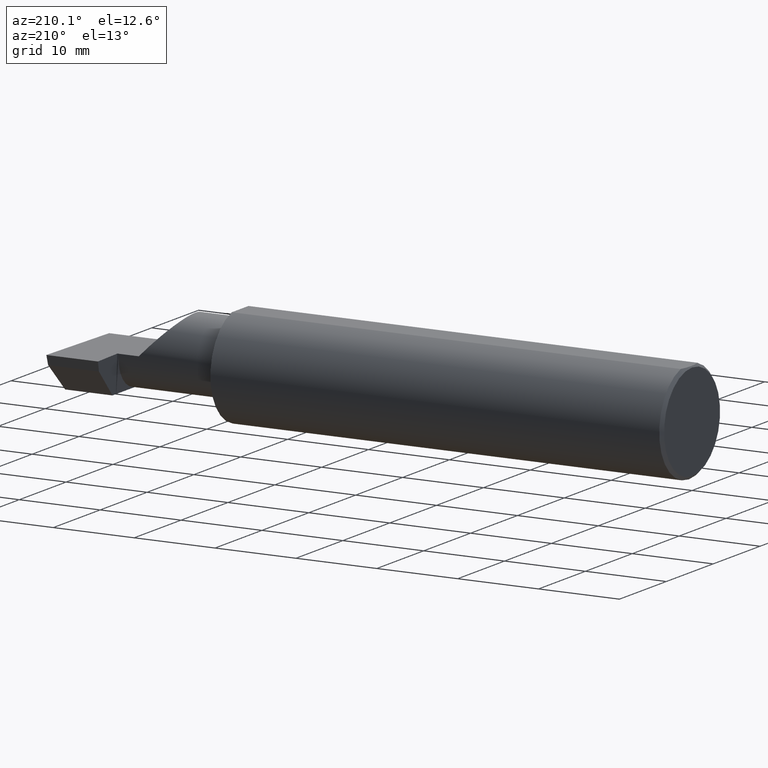
[diagram: clean part render]
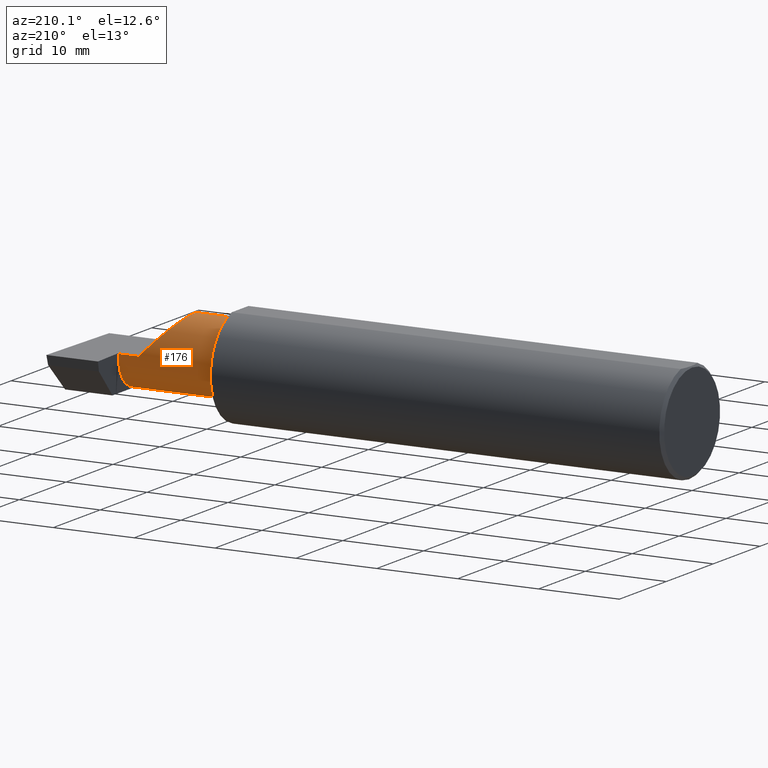
[diagram: same view with one face highlighted and labeled with its STEP entity id]
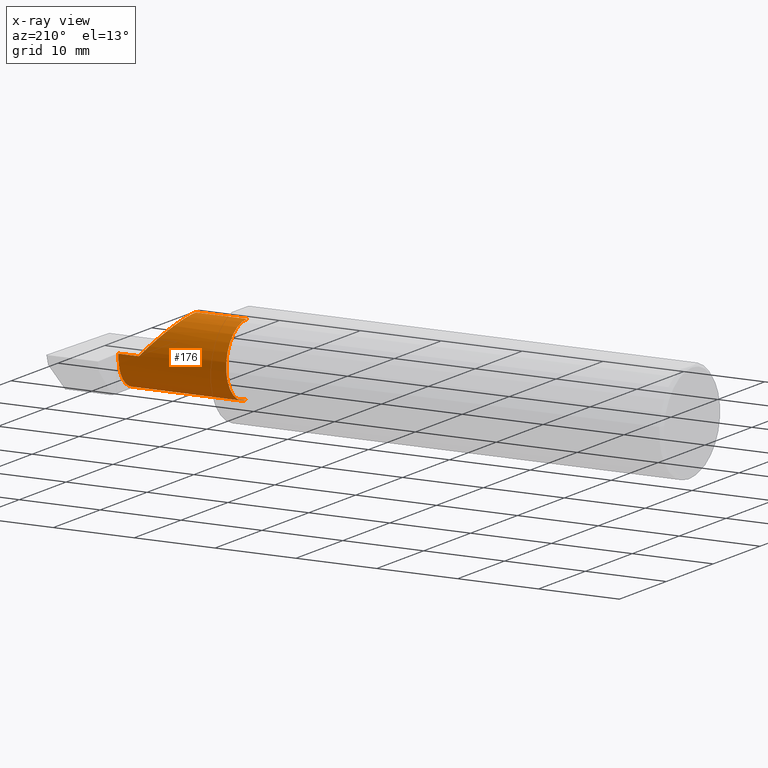
[diagram: x-ray of the same camera — body ghosted, the highlighted face saturated]
A machine part, auxiliary view. The second image highlights one B-rep face of the part: STEP entity #176.
The next image is the same camera in x-ray: the body ghosted, the highlighted face saturated — about 0% of this face is hidden behind the body in this view.
In plain terms, the highlighted cylindrical surface (partial cylindrical patch) has radius 4.445 mm, axis along (-1, -0, -0).
Its self-contained STEP definition (entity closure, byte-faithful):
#10 = CARTESIAN_POINT ( 'NONE',  ( 2.225000000000000089, -0.1008499999999999536, -0.1749999999999999889 ) ) ;
#14 = CARTESIAN_POINT ( 'NONE',  ( 2.200000000000000178, -0.1008499999999999674, 0.000000000000000000 ) ) ;
#26 = CARTESIAN_POINT ( 'NONE',  ( 2.225000000000000089, -0.1008499999999999674, 0.000000000000000000 ) ) ;
#27 = VECTOR ( 'NONE', #440, 39.37007874015748143 ) ;
#37 = DIRECTION ( 'NONE',  ( 1.000000000000000000, 0.000000000000000000, 0.000000000000000000 ) ) ;
#53 = VERTEX_POINT ( 'NONE', #612 ) ;
#56 = EDGE_CURVE ( 'NONE', #64, #53, #757, .T. ) ;
#64 = VERTEX_POINT ( 'NONE', #294 ) ;
#65 = EDGE_CURVE ( 'NONE', #53, #786, #67, .T. ) ;
#66 = CARTESIAN_POINT ( 'NONE',  ( 2.751037492458068279, 0.06794054266098323303, -0.04620338416404774079 ) ) ;
#67 =( BOUNDED_CURVE ( )  B_SPLINE_CURVE ( 3, ( #66, #390, #381, #501 ),
 .UNSPECIFIED., .F., .F. ) 
 B_SPLINE_CURVE_WITH_KNOTS ( ( 4, 4 ),
 ( 4.443983221546778495, 4.709965478757016655 ),
 .UNSPECIFIED. ) 
 CURVE ( )  GEOMETRIC_REPRESENTATION_ITEM ( )  RATIONAL_B_SPLINE_CURVE ( ( 1.000000000000000000, 0.9941131374841131185, 0.9941131374841131185, 1.000000000000000000 ) ) 
 REPRESENTATION_ITEM ( '' )  );
#92 = CARTESIAN_POINT ( 'NONE',  ( 2.475000000000001421, -0.1008499999999999674, 0.1749999999999999889 ) ) ;
#111 = LINE ( 'NONE', #785, #660 ) ;
#118 = VERTEX_POINT ( 'NONE', #560 ) ;
#124 = VERTEX_POINT ( 'NONE', #573 ) ;
#147 = DIRECTION ( 'NONE',  ( 0.000000000000000000, 0.000000000000000000, 1.000000000000000000 ) ) ;
#154 = CARTESIAN_POINT ( 'NONE',  ( 2.475000000000001421, 0.001662626584708371512, 0.1749999999999999889 ) ) ;
#170 = EDGE_CURVE ( 'NONE', #64, #597, #437, .T. ) ;
#171 = DIRECTION ( 'NONE',  ( -1.000000000000000000, -0.000000000000000000, -0.000000000000000000 ) ) ;
#173 = VECTOR ( 'NONE', #432, 39.37007874015748143 ) ;
#176 = ADVANCED_FACE ( 'NONE', ( #195 ), #570, .T. ) ;
#186 = VERTEX_POINT ( 'NONE', #92 ) ;
#194 = CARTESIAN_POINT ( 'NONE',  ( 2.200000000000000178, -0.1008499999999999674, 0.1749999999999999889 ) ) ;
#195 = FACE_OUTER_BOUND ( 'NONE', #307, .T. ) ;
#252 = CARTESIAN_POINT ( 'NONE',  ( 2.760029432995152465, -0.1008500000000000091, -0.1749999999999999889 ) ) ;
#263 = EDGE_CURVE ( 'NONE', #186, #578, #569, .T. ) ;
#282 = DIRECTION ( 'NONE',  ( -1.000000000000000000, -0.000000000000000000, -0.000000000000000000 ) ) ;
#294 = CARTESIAN_POINT ( 'NONE',  ( 2.760029432995152465, -0.1008500000000000091, -0.1749999999999999889 ) ) ;
#307 = EDGE_LOOP ( 'NONE', ( #700, #540, #421, #600, #620, #484, #426, #695 ) ) ;
#308 = AXIS2_PLACEMENT_3D ( 'NONE', #26, #282, #147 ) ;
#325 = DIRECTION ( 'NONE',  ( 0.000000000000000000, 0.000000000000000000, 1.000000000000000000 ) ) ;
#339 = CARTESIAN_POINT ( 'NONE',  ( 2.650000000000000355, 0.07414999999999997982, 4.286263797015727350E-17 ) ) ;
#357 = CARTESIAN_POINT ( 'NONE',  ( 2.751037492458068279, 0.06794054266098323303, -0.04620338416404774079 ) ) ;
#374 = CARTESIAN_POINT ( 'NONE',  ( 2.650000000000000355, 0.07414999999999997982, 4.286263797015727350E-17 ) ) ;
#381 = CARTESIAN_POINT ( 'NONE',  ( 2.749689495973013820, 0.07413112468343002748, -0.01577237022675150729 ) ) ;
#390 = CARTESIAN_POINT ( 'NONE',  ( 2.750372681961405164, 0.07204909126152565790, -0.03119400421533637113 ) ) ;
#394 = CARTESIAN_POINT ( 'NONE',  ( 2.547487373415292744, 0.07414999999999996594, 0.1025126265847083745 ) ) ;
#407 = CARTESIAN_POINT ( 'NONE',  ( 2.749000000000000110, -0.1008499999999999674, 0.000000000000000000 ) ) ;
#413 = CARTESIAN_POINT ( 'NONE',  ( 2.756564601548836535, 0.04629714416892562884, -0.1252712066320194051 ) ) ;
#421 = ORIENTED_EDGE ( 'NONE', *, *, #766, .F. ) ;
#426 = ORIENTED_EDGE ( 'NONE', *, *, #545, .T. ) ;
#427 = LINE ( 'NONE', #194, #173 ) ;
#432 = DIRECTION ( 'NONE',  ( -1.000000000000000000, -0.000000000000000000, -0.000000000000000000 ) ) ;
#437 = LINE ( 'NONE', #565, #27 ) ;
#440 = DIRECTION ( 'NONE',  ( -1.000000000000000000, -0.000000000000000000, -0.000000000000000000 ) ) ;
#473 = EDGE_CURVE ( 'NONE', #578, #124, #111, .T. ) ;
#484 = ORIENTED_EDGE ( 'NONE', *, *, #473, .T. ) ;
#495 = CARTESIAN_POINT ( 'NONE',  ( 2.760036419112081862, -0.01887343476265498227, -0.1750000000000000444 ) ) ;
#499 = CIRCLE ( 'NONE', #308, 0.1749999999999999889 ) ;
#501 = CARTESIAN_POINT ( 'NONE',  ( 2.749000000000000110, 0.07414987299205305638, -0.0002108382441793307837 ) ) ;
#517 = AXIS2_PLACEMENT_3D ( 'NONE', #14, #686, #325 ) ;
#530 = CARTESIAN_POINT ( 'NONE',  ( 2.749000000000000110, 0.07414987299205305638, -0.0002108382441793307837 ) ) ;
#540 = ORIENTED_EDGE ( 'NONE', *, *, #170, .T. ) ;
#545 = EDGE_CURVE ( 'NONE', #124, #786, #547, .T. ) ;
#547 = CIRCLE ( 'NONE', #787, 0.1749999999999999889 ) ;
#560 = CARTESIAN_POINT ( 'NONE',  ( 2.225000000000000089, -0.1008499999999999674, 0.1749999999999999889 ) ) ;
#565 = CARTESIAN_POINT ( 'NONE',  ( 2.200000000000000178, -0.1008499999999999536, -0.1749999999999999889 ) ) ;
#569 =( BOUNDED_CURVE ( )  B_SPLINE_CURVE ( 3, ( #643, #154, #394, #339 ),
 .UNSPECIFIED., .F., .F. ) 
 B_SPLINE_CURVE_WITH_KNOTS ( ( 4, 4 ),
 ( 0.000000000000000000, 1.570796326794896558 ),
 .UNSPECIFIED. ) 
 CURVE ( )  GEOMETRIC_REPRESENTATION_ITEM ( )  RATIONAL_B_SPLINE_CURVE ( ( 1.000000000000000000, 0.8047378541243649375, 0.8047378541243649375, 1.000000000000000000 ) ) 
 REPRESENTATION_ITEM ( '' )  );
#570 = CYLINDRICAL_SURFACE ( 'NONE', #517, 0.1749999999999999889 ) ;
#573 = CARTESIAN_POINT ( 'NONE',  ( 2.749000000000000110, 0.07414999999999996594, 9.797183910213926864E-17 ) ) ;
#578 = VERTEX_POINT ( 'NONE', #374 ) ;
#597 = VERTEX_POINT ( 'NONE', #10 ) ;
#600 = ORIENTED_EDGE ( 'NONE', *, *, #652, .F. ) ;
#612 = CARTESIAN_POINT ( 'NONE',  ( 2.751037492458068279, 0.06794054266098323303, -0.04620338416404774079 ) ) ;
#620 = ORIENTED_EDGE ( 'NONE', *, *, #263, .T. ) ;
#643 = CARTESIAN_POINT ( 'NONE',  ( 2.475000000000001421, -0.1008499999999999674, 0.1749999999999999889 ) ) ;
#649 = DIRECTION ( 'NONE',  ( 0.000000000000000000, 0.000000000000000000, 1.000000000000000000 ) ) ;
#652 = EDGE_CURVE ( 'NONE', #186, #118, #427, .T. ) ;
#660 = VECTOR ( 'NONE', #37, 39.37007874015748143 ) ;
#686 = DIRECTION ( 'NONE',  ( -1.000000000000000000, -0.000000000000000000, -0.000000000000000000 ) ) ;
#695 = ORIENTED_EDGE ( 'NONE', *, *, #65, .F. ) ;
#700 = ORIENTED_EDGE ( 'NONE', *, *, #56, .F. ) ;
#757 =( BOUNDED_CURVE ( )  B_SPLINE_CURVE ( 3, ( #252, #495, #413, #357 ),
 .UNSPECIFIED., .F., .F. ) 
 B_SPLINE_CURVE_WITH_KNOTS ( ( 4, 4 ),
 ( 3.140373936913444908, 4.443983221546777607 ),
 .UNSPECIFIED. ) 
 CURVE ( )  GEOMETRIC_REPRESENTATION_ITEM ( )  RATIONAL_B_SPLINE_CURVE ( ( 1.000000000000000000, 0.8633269052189371795, 0.8633269052189371795, 1.000000000000000000 ) ) 
 REPRESENTATION_ITEM ( '' )  );
#766 = EDGE_CURVE ( 'NONE', #118, #597, #499, .T. ) ;
#785 = CARTESIAN_POINT ( 'NONE',  ( 2.200000000000000178, 0.07414999999999997982, 9.797174393178811359E-17 ) ) ;
#786 = VERTEX_POINT ( 'NONE', #530 ) ;
#787 = AXIS2_PLACEMENT_3D ( 'NONE', #407, #171, #649 ) ;